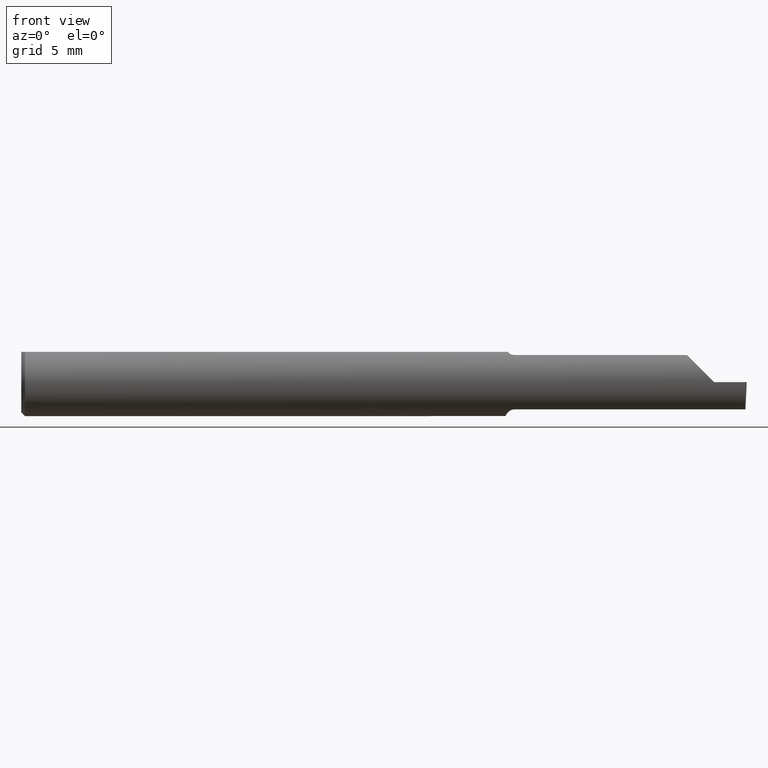
[diagram: clean part render]
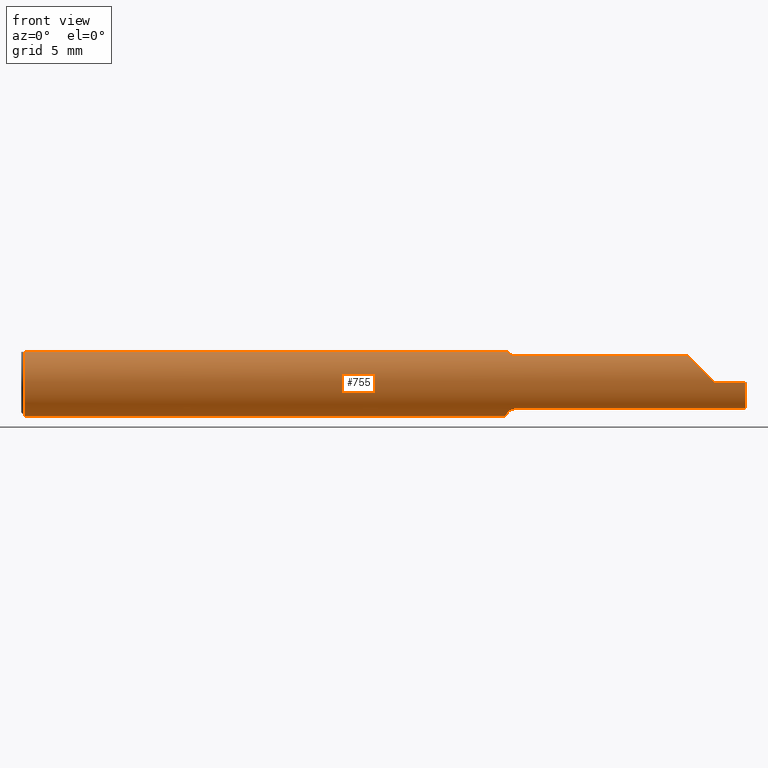
[diagram: same view with one face highlighted and labeled with its STEP entity id]
A machine part, front view. The second image highlights one B-rep face of the part: STEP entity #755.
In plain terms, the highlighted cylindrical surface (edge-blend (fillet) strip) has radius 2.3774 mm, axis along (-1, -0, -0).
Its self-contained STEP definition (entity closure, byte-faithful):
#2 = CARTESIAN_POINT ( 'NONE',  ( 1.351446782524423629, -0.05558685324519221926, -0.07531605361338924998 ) ) ;
#5 = EDGE_CURVE ( 'NONE', #344, #516, #43, .T. ) ;
#8 = CARTESIAN_POINT ( 'NONE',  ( 1.341129652885479251, -0.04209513035970115918, 0.08359999999999991049 ) ) ;
#9 = CARTESIAN_POINT ( 'NONE',  ( 1.351469028275930961, -0.05559939362423892834, 0.07530665289274073027 ) ) ;
#11 = CARTESIAN_POINT ( 'NONE',  ( 1.334999999999999742, -0.006757276995305315156, -0.09335576686851604356 ) ) ;
#12 = CARTESIAN_POINT ( 'NONE',  ( 1.357655343791670299, -0.05810704225352112534, 0.07337936794867830348 ) ) ;
#14 = CARTESIAN_POINT ( 'NONE',  ( 1.836620632051321200, -0.05810704225352100044, 0.07337936794867835899 ) ) ;
#19 = CARTESIAN_POINT ( 'NONE',  ( 1.341356684838558522, -0.04260000000000006143, 0.08334386600104411180 ) ) ;
#20 = DIRECTION ( 'NONE',  ( 0.000000000000000000, 0.000000000000000000, 1.000000000000000000 ) ) ;
#21 = ORIENTED_EDGE ( 'NONE', *, *, #124, .T. ) ;
#22 = EDGE_CURVE ( 'NONE', #113, #229, #763, .T. ) ;
#23 = DIRECTION ( 'NONE',  ( -1.000000000000000000, -0.000000000000000000, -0.000000000000000000 ) ) ;
#25 = EDGE_CURVE ( 'NONE', #802, #170, #506, .T. ) ;
#32 = VERTEX_POINT ( 'NONE', #345 ) ;
#33 = CARTESIAN_POINT ( 'NONE',  ( 1.995346537079453419, -0.08092595952420826577, -0.05530971394246244482 ) ) ;
#43 = LINE ( 'NONE', #464, #63 ) ;
#45 = ORIENTED_EDGE ( 'NONE', *, *, #640, .T. ) ;
#54 = CARTESIAN_POINT ( 'NONE',  ( 0.009999999999999877043, 0.04209513035969864037, 0.08359999999999988274 ) ) ;
#59 = VERTEX_POINT ( 'NONE', #799 ) ;
#62 = LINE ( 'NONE', #543, #504 ) ;
#63 = VECTOR ( 'NONE', #422, 39.37007874015748143 ) ;
#65 = B_SPLINE_CURVE_WITH_KNOTS ( 'NONE', 3,
 ( #508, #750, #253, #495, #9, #137, #12, #203 ),
 .UNSPECIFIED., .F., .F.,
 ( 4, 2, 2, 4 ),
 ( 1.584523690453658475E-05, 0.0003656721978374786498, 0.0005405856783039496858, 0.0007154991587704208301 ),
 .UNSPECIFIED. ) ;
#84 = CYLINDRICAL_SURFACE ( 'NONE', #785, 0.09360000000000001652 ) ;
#87 = CARTESIAN_POINT ( 'NONE',  ( 1.995113740419715231, -0.05810704225352111146, -0.07337936794867830348 ) ) ;
#113 = VERTEX_POINT ( 'NONE', #11 ) ;
#117 = VERTEX_POINT ( 'NONE', #697 ) ;
#124 = EDGE_CURVE ( 'NONE', #551, #117, #291, .T. ) ;
#130 = CARTESIAN_POINT ( 'NONE',  ( 1.343086474849918721, -0.04638796853538170589, -0.08140770120152260314 ) ) ;
#134 = CARTESIAN_POINT ( 'NONE',  ( 1.345264545693808600, -0.04993027844100256935, -0.07924826417278518775 ) ) ;
#137 = CARTESIAN_POINT ( 'NONE',  ( 1.355389214148234434, -0.05750155061631028602, 0.07386444488392708563 ) ) ;
#146 = DIRECTION ( 'NONE',  ( 1.000000000000000000, 0.000000000000000000, 0.000000000000000000 ) ) ;
#164 = AXIS2_PLACEMENT_3D ( 'NONE', #171, #784, #231 ) ;
#170 = VERTEX_POINT ( 'NONE', #574 ) ;
#171 = CARTESIAN_POINT ( 'NONE',  ( 0.009999999999999877043, 0.000000000000000000, 0.000000000000000000 ) ) ;
#177 = AXIS2_PLACEMENT_3D ( 'NONE', #433, #146, #447 ) ;
#193 = VERTEX_POINT ( 'NONE', #747 ) ;
#199 = DIRECTION ( 'NONE',  ( 1.000000000000000000, 0.000000000000000000, 0.000000000000000000 ) ) ;
#203 = CARTESIAN_POINT ( 'NONE',  ( 1.359999999999999654, -0.05810704225352111146, 0.07337936794867830348 ) ) ;
#209 = FACE_OUTER_BOUND ( 'NONE', #352, .T. ) ;
#213 = VECTOR ( 'NONE', #415, 39.37007874015748143 ) ;
#215 = CARTESIAN_POINT ( 'NONE',  ( 1.359999999999999654, -0.05810704225352108371, -0.07337936794867830348 ) ) ;
#223 = ORIENTED_EDGE ( 'NONE', *, *, #687, .T. ) ;
#226 = EDGE_CURVE ( 'NONE', #193, #59, #438, .T. ) ;
#227 = CARTESIAN_POINT ( 'NONE',  ( 1.338953896433695556, -0.03733827064844359028, -0.08603332211978829969 ) ) ;
#229 = VERTEX_POINT ( 'NONE', #373 ) ;
#231 = DIRECTION ( 'NONE',  ( 0.000000000000000000, 0.000000000000000000, -1.000000000000000000 ) ) ;
#232 = CARTESIAN_POINT ( 'NONE',  ( 1.664733979999999613, -0.05810704225352111146, 0.07337936794867830348 ) ) ;
#234 = VECTOR ( 'NONE', #199, 39.37007874015748143 ) ;
#239 = LINE ( 'NONE', #232, #213 ) ;
#240 = CARTESIAN_POINT ( 'NONE',  ( 1.334999999999999742, -0.006757276995305315156, -0.09335576686851604356 ) ) ;
#245 = CARTESIAN_POINT ( 'NONE',  ( 1.334999999999999520, -0.01308640439514279288, -0.09289765197734374536 ) ) ;
#252 = EDGE_CURVE ( 'NONE', #229, #627, #736, .T. ) ;
#253 = CARTESIAN_POINT ( 'NONE',  ( 1.345259025420519672, -0.04992838138009418614, 0.07925011723318654833 ) ) ;
#274 = CARTESIAN_POINT ( 'NONE',  ( 1.996040470437265402, -0.09360000000000003040, -0.02910696448121679811 ) ) ;
#286 = B_SPLINE_CURVE_WITH_KNOTS ( 'NONE', 3,
 ( #790, #227, #800, #416, #245, #240 ),
 .UNSPECIFIED., .F., .F.,
 ( 4, 2, 4 ),
 ( 0.0007041963409106259328, 0.001193146413573846574, 0.001682096486237067215 ),
 .UNSPECIFIED. ) ;
#291 =( BOUNDED_CURVE ( )  B_SPLINE_CURVE ( 3, ( #502, #500, #569, #14 ),
 .UNSPECIFIED., .F., .F. ) 
 B_SPLINE_CURVE_WITH_KNOTS ( ( 4, 4 ),
 ( 4.712388980384689674, 5.613420356061720184 ),
 .UNSPECIFIED. ) 
 CURVE ( )  GEOMETRIC_REPRESENTATION_ITEM ( )  RATIONAL_B_SPLINE_CURVE ( ( 1.000000000000000000, 0.9334817841311873199, 0.9334817841311873199, 1.000000000000000000 ) ) 
 REPRESENTATION_ITEM ( '' )  );
#294 = ORIENTED_EDGE ( 'NONE', *, *, #435, .F. ) ;
#314 = CARTESIAN_POINT ( 'NONE',  ( 1.355389671955115727, -0.05750350940205785355, -0.07386306649500078148 ) ) ;
#318 = LINE ( 'NONE', #759, #234 ) ;
#321 = CARTESIAN_POINT ( 'NONE',  ( 1.341204482410373933, -0.04226411763296345631, 0.08351490979309542095 ) ) ;
#325 = DIRECTION ( 'NONE',  ( -1.000000000000000000, -0.000000000000000000, -0.000000000000000000 ) ) ;
#329 = CARTESIAN_POINT ( 'NONE',  ( 0.000000000000000000, 0.000000000000000000, 0.000000000000000000 ) ) ;
#344 = VERTEX_POINT ( 'NONE', #774 ) ;
#345 = CARTESIAN_POINT ( 'NONE',  ( 1.341356684838558522, -0.04260000000000006143, -0.08334386600104411180 ) ) ;
#352 = EDGE_LOOP ( 'NONE', ( #663, #616, #45, #21, #294, #356, #474, #532, #728, #223, #735, #409, #368, #645 ) ) ;
#354 = EDGE_CURVE ( 'NONE', #344, #417, #571, .T. ) ;
#356 = ORIENTED_EDGE ( 'NONE', *, *, #752, .F. ) ;
#360 = CARTESIAN_POINT ( 'NONE',  ( 1.997057062866469668, -0.09360000000000001652, 0.000000000000000000 ) ) ;
#361 = VERTEX_POINT ( 'NONE', #591 ) ;
#368 = ORIENTED_EDGE ( 'NONE', *, *, #615, .F. ) ;
#373 = CARTESIAN_POINT ( 'NONE',  ( 1.334999999999999742, 0.04209513035969864037, 0.08359999999999988274 ) ) ;
#404 = AXIS2_PLACEMENT_3D ( 'NONE', #794, #677, #529 ) ;
#409 = ORIENTED_EDGE ( 'NONE', *, *, #22, .F. ) ;
#415 = DIRECTION ( 'NONE',  ( 1.000000000000000000, 0.000000000000000000, 0.000000000000000000 ) ) ;
#416 = CARTESIAN_POINT ( 'NONE',  ( 1.335436655799339345, -0.01945041057485646582, -0.09177104786119409663 ) ) ;
#417 = VERTEX_POINT ( 'NONE', #360 ) ;
#422 = DIRECTION ( 'NONE',  ( -1.000000000000000000, -0.000000000000000000, -0.000000000000000000 ) ) ;
#430 = CARTESIAN_POINT ( 'NONE',  ( 1.349728336617689317, -0.05428341532129036390, -0.07627162539867105018 ) ) ;
#433 = CARTESIAN_POINT ( 'NONE',  ( 0.009999999999999877043, 0.000000000000000000, 0.000000000000000000 ) ) ;
#435 = EDGE_CURVE ( 'NONE', #361, #117, #239, .T. ) ;
#438 = B_SPLINE_CURVE_WITH_KNOTS ( 'NONE', 3,
 ( #8, #321, #713, #19 ),
 .UNSPECIFIED., .F., .F.,
 ( 4, 4 ),
 ( 4.741820243535099003E-07, 1.584523690453658475E-05 ),
 .UNSPECIFIED. ) ;
#447 = DIRECTION ( 'NONE',  ( 0.000000000000000000, 0.000000000000000000, -1.000000000000000000 ) ) ;
#462 = CARTESIAN_POINT ( 'NONE',  ( 1.910000000000000142, -0.09360000000000005815, 1.102182119232621301E-17 ) ) ;
#464 = CARTESIAN_POINT ( 'NONE',  ( 1.664733979999999613, -0.05810704225352111146, -0.07337936794867830348 ) ) ;
#474 = ORIENTED_EDGE ( 'NONE', *, *, #226, .F. ) ;
#491 = EDGE_CURVE ( 'NONE', #516, #32, #692, .T. ) ;
#492 = CARTESIAN_POINT ( 'NONE',  ( 1.357653034764491284, -0.05810704225352110452, -0.07337936794867828960 ) ) ;
#495 = CARTESIAN_POINT ( 'NONE',  ( 1.349746577633804012, -0.05429945193459807806, 0.07626038032150804502 ) ) ;
#500 = CARTESIAN_POINT ( 'NONE',  ( 1.880893035518782730, -0.09359999999999997489, 0.02910696448121682239 ) ) ;
#502 = CARTESIAN_POINT ( 'NONE',  ( 1.910000000000000142, -0.09360000000000005815, 1.102182119232621301E-17 ) ) ;
#504 = VECTOR ( 'NONE', #795, 39.37007874015748143 ) ;
#506 = CIRCLE ( 'NONE', #164, 0.09360000000000001652 ) ;
#508 = CARTESIAN_POINT ( 'NONE',  ( 1.341356684838558522, -0.04260000000000006143, 0.08334386600104411180 ) ) ;
#516 = VERTEX_POINT ( 'NONE', #215 ) ;
#529 = DIRECTION ( 'NONE',  ( 0.000000000000000000, 0.000000000000000000, -1.000000000000000000 ) ) ;
#532 = ORIENTED_EDGE ( 'NONE', *, *, #661, .F. ) ;
#543 = CARTESIAN_POINT ( 'NONE',  ( 2.999519565323742037E-32, -0.09359999999999998876, 2.449293598294716768E-16 ) ) ;
#551 = VERTEX_POINT ( 'NONE', #462 ) ;
#554 = CARTESIAN_POINT ( 'NONE',  ( 1.359999999999999654, -0.05810704225352108371, -0.07337936794867830348 ) ) ;
#563 = CARTESIAN_POINT ( 'NONE',  ( 1.341356684838558522, -0.04260000000000006143, -0.08334386600104411180 ) ) ;
#568 = CARTESIAN_POINT ( 'NONE',  ( 0.009999999999999877043, -0.04209513035969864037, 0.08359999999999988274 ) ) ;
#569 = CARTESIAN_POINT ( 'NONE',  ( 1.854690286057536941, -0.08092595952420821026, 0.05530971394246249340 ) ) ;
#571 =( BOUNDED_CURVE ( )  B_SPLINE_CURVE ( 3, ( #87, #33, #274, #777 ),
 .UNSPECIFIED., .F., .T. ) 
 B_SPLINE_CURVE_WITH_KNOTS ( ( 4, 4 ),
 ( 0.2063001339125341005, 1.107331509589563945 ),
 .UNSPECIFIED. ) 
 CURVE ( )  GEOMETRIC_REPRESENTATION_ITEM ( )  RATIONAL_B_SPLINE_CURVE ( ( 1.000000000000000000, 0.9334817841311873199, 0.9334817841311873199, 1.000000000000000000 ) ) 
 REPRESENTATION_ITEM ( '' )  );
#574 = CARTESIAN_POINT ( 'NONE',  ( 0.009999999999999877043, 0.000000000000000000, -0.09360000000000001652 ) ) ;
#582 = CARTESIAN_POINT ( 'NONE',  ( 0.000000000000000000, 0.04209513035969864037, 0.08359999999999988274 ) ) ;
#591 = CARTESIAN_POINT ( 'NONE',  ( 1.359999999999999654, -0.05810704225352111146, 0.07337936794867830348 ) ) ;
#615 = EDGE_CURVE ( 'NONE', #32, #113, #286, .T. ) ;
#616 = ORIENTED_EDGE ( 'NONE', *, *, #354, .T. ) ;
#627 = VERTEX_POINT ( 'NONE', #54 ) ;
#640 = EDGE_CURVE ( 'NONE', #417, #551, #62, .T. ) ;
#645 = ORIENTED_EDGE ( 'NONE', *, *, #491, .F. ) ;
#661 = EDGE_CURVE ( 'NONE', #802, #193, #318, .T. ) ;
#663 = ORIENTED_EDGE ( 'NONE', *, *, #5, .F. ) ;
#677 = DIRECTION ( 'NONE',  ( 1.000000000000000000, 0.000000000000000000, 0.000000000000000000 ) ) ;
#687 = EDGE_CURVE ( 'NONE', #170, #627, #693, .T. ) ;
#692 = B_SPLINE_CURVE_WITH_KNOTS ( 'NONE', 3,
 ( #554, #492, #314, #2, #430, #134, #130, #563 ),
 .UNSPECIFIED., .F., .F.,
 ( 4, 2, 2, 4 ),
 ( 1.968126669309073504E-07, 0.0001761966947278579426, 0.0003521965767887850151, 0.0007041963409106259328 ),
 .UNSPECIFIED. ) ;
#693 = CIRCLE ( 'NONE', #177, 0.09360000000000001652 ) ;
#697 = CARTESIAN_POINT ( 'NONE',  ( 1.836620632051321200, -0.05810704225352100044, 0.07337936794867835899 ) ) ;
#713 = CARTESIAN_POINT ( 'NONE',  ( 1.341280153739604852, -0.04243240890922552605, 0.08342952773968850821 ) ) ;
#728 = ORIENTED_EDGE ( 'NONE', *, *, #25, .T. ) ;
#735 = ORIENTED_EDGE ( 'NONE', *, *, #252, .F. ) ;
#736 = LINE ( 'NONE', #582, #788 ) ;
#747 = CARTESIAN_POINT ( 'NONE',  ( 1.341129652885479251, -0.04209513035970115918, 0.08359999999999991049 ) ) ;
#750 = CARTESIAN_POINT ( 'NONE',  ( 1.343098441794897902, -0.04641417426599072499, 0.08139430652501537800 ) ) ;
#752 = EDGE_CURVE ( 'NONE', #59, #361, #65, .T. ) ;
#755 = ADVANCED_FACE ( 'NONE', ( #209 ), #84, .T. ) ;
#759 = CARTESIAN_POINT ( 'NONE',  ( 0.000000000000000000, -0.04209513035969864037, 0.08359999999999988274 ) ) ;
#763 = CIRCLE ( 'NONE', #404, 0.09360000000000001652 ) ;
#774 = CARTESIAN_POINT ( 'NONE',  ( 1.995113740419715231, -0.05810704225352111146, -0.07337936794867830348 ) ) ;
#777 = CARTESIAN_POINT ( 'NONE',  ( 1.997057062866469668, -0.09360000000000001652, 0.000000000000000000 ) ) ;
#784 = DIRECTION ( 'NONE',  ( 1.000000000000000000, 0.000000000000000000, 0.000000000000000000 ) ) ;
#785 = AXIS2_PLACEMENT_3D ( 'NONE', #329, #325, #20 ) ;
#788 = VECTOR ( 'NONE', #23, 39.37007874015748143 ) ;
#790 = CARTESIAN_POINT ( 'NONE',  ( 1.341356684838558522, -0.04260000000000006143, -0.08334386600104411180 ) ) ;
#794 = CARTESIAN_POINT ( 'NONE',  ( 1.334999999999999742, 0.000000000000000000, 0.000000000000000000 ) ) ;
#795 = DIRECTION ( 'NONE',  ( -1.000000000000000000, -0.000000000000000000, -0.000000000000000000 ) ) ;
#799 = CARTESIAN_POINT ( 'NONE',  ( 1.341356684838558522, -0.04260000000000006143, 0.08334386600104411180 ) ) ;
#800 = CARTESIAN_POINT ( 'NONE',  ( 1.337415450430337494, -0.03151229630690477457, -0.08835846806355290850 ) ) ;
#802 = VERTEX_POINT ( 'NONE', #568 ) ;